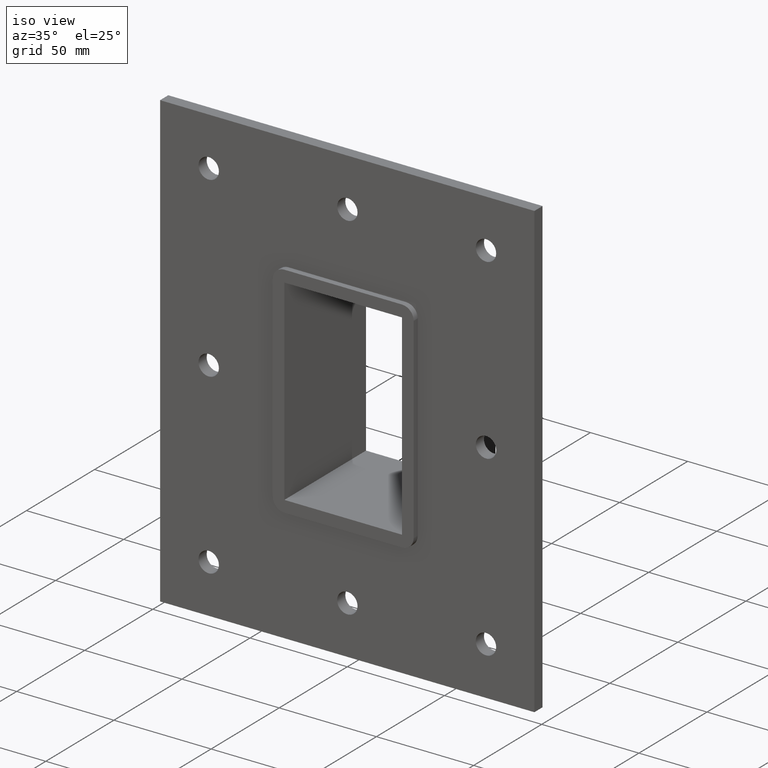
[diagram: clean part render]
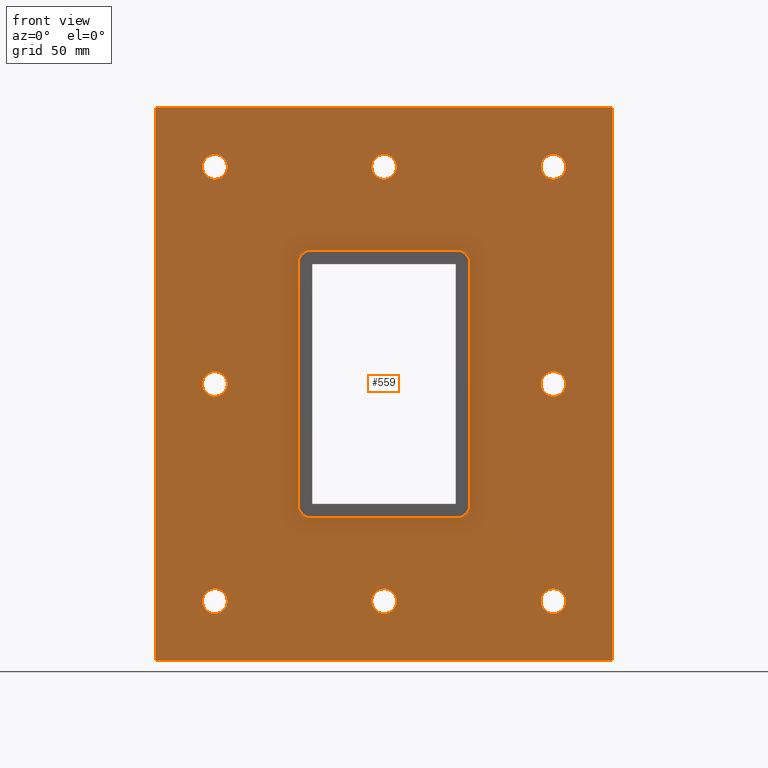
[diagram: tour spotlight — one face highlighted and labeled with its STEP entity id]
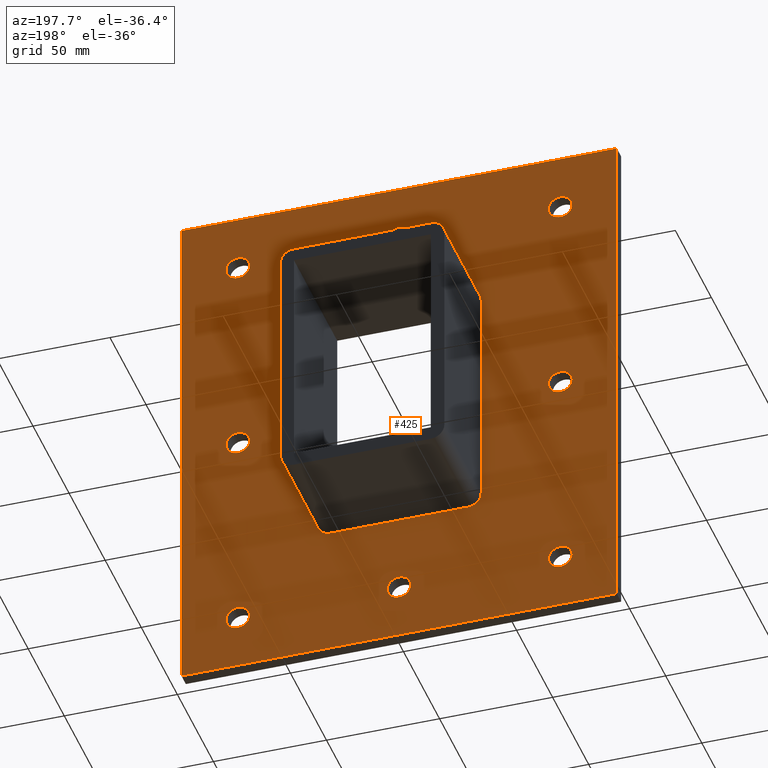
[diagram: tour spotlight — one face highlighted and labeled with its STEP entity id]
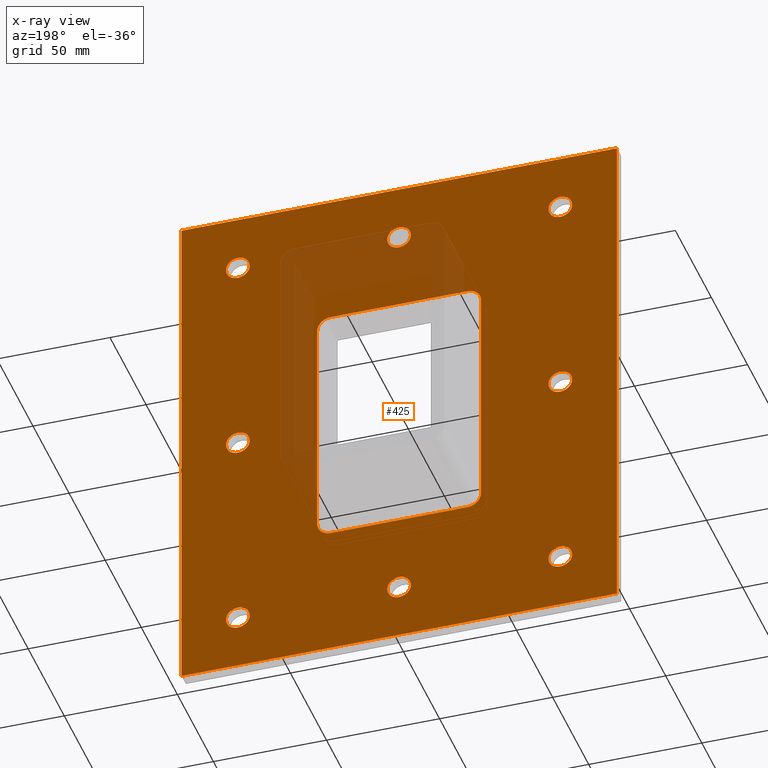
[diagram: x-ray of the same camera — body ghosted, this tour face saturated]
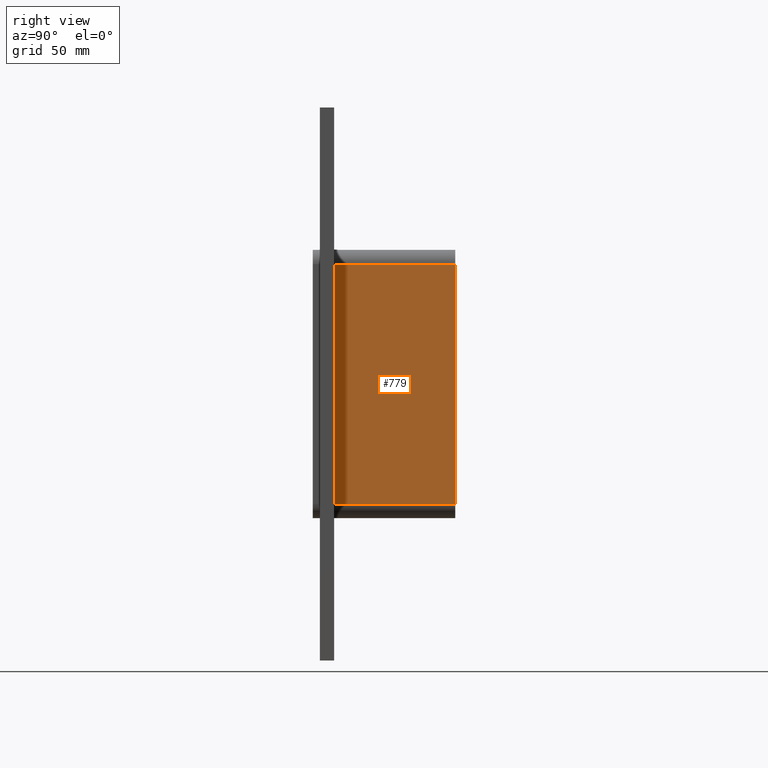
[diagram: tour spotlight — one face highlighted and labeled with its STEP entity id]
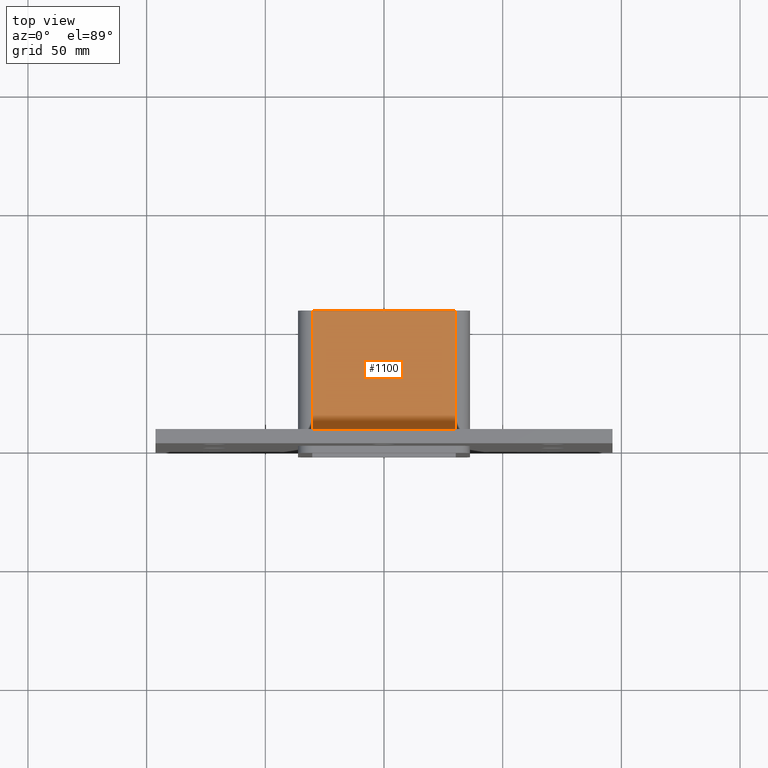
[diagram: tour spotlight — one face highlighted and labeled with its STEP entity id]
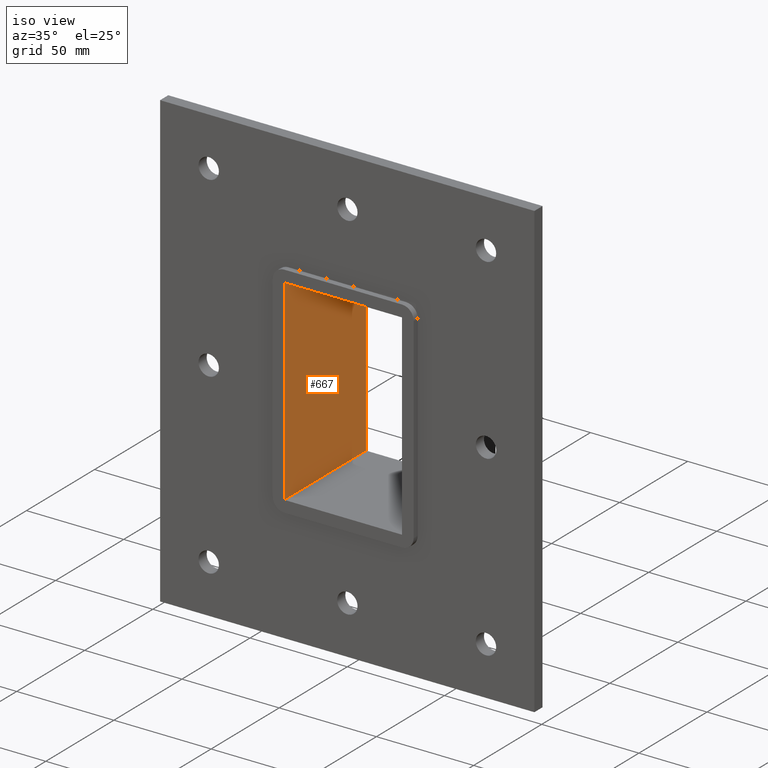
[diagram: tour spotlight — one face highlighted and labeled with its STEP entity id]
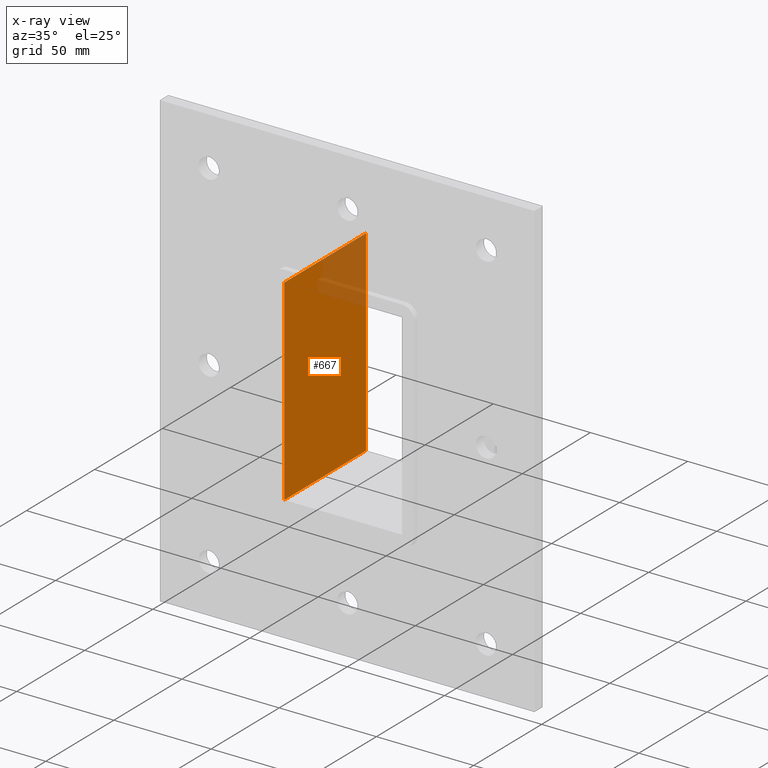
[diagram: x-ray of the same camera — body ghosted, this tour face saturated]
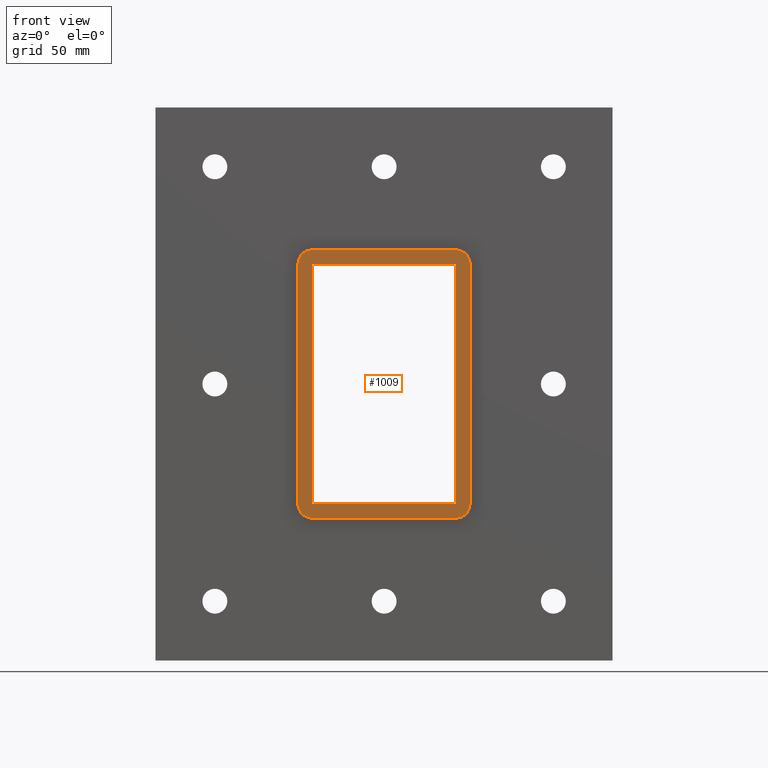
[diagram: tour spotlight — one face highlighted and labeled with its STEP entity id]
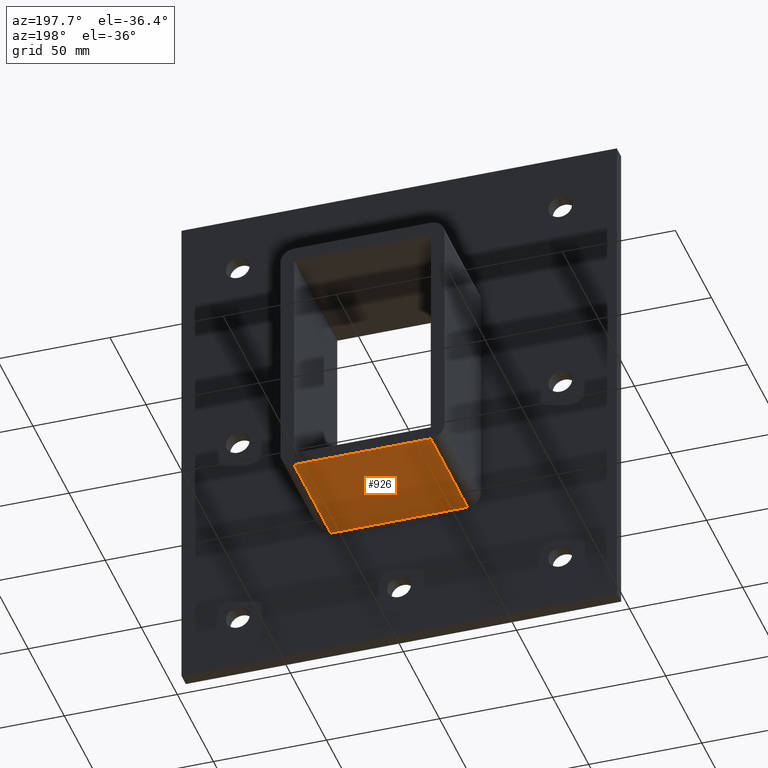
[diagram: tour spotlight — one face highlighted and labeled with its STEP entity id]
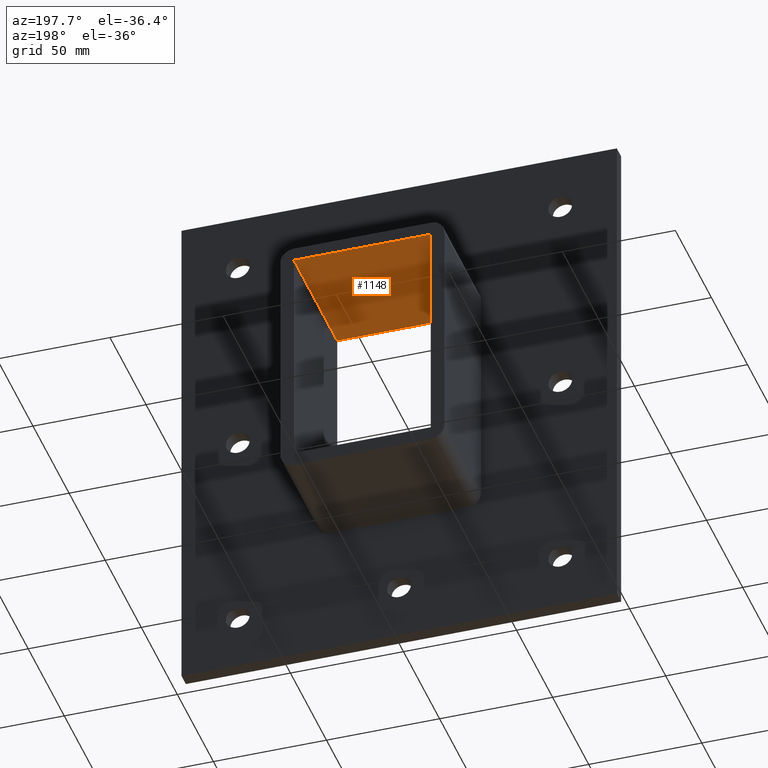
[diagram: tour spotlight — one face highlighted and labeled with its STEP entity id]
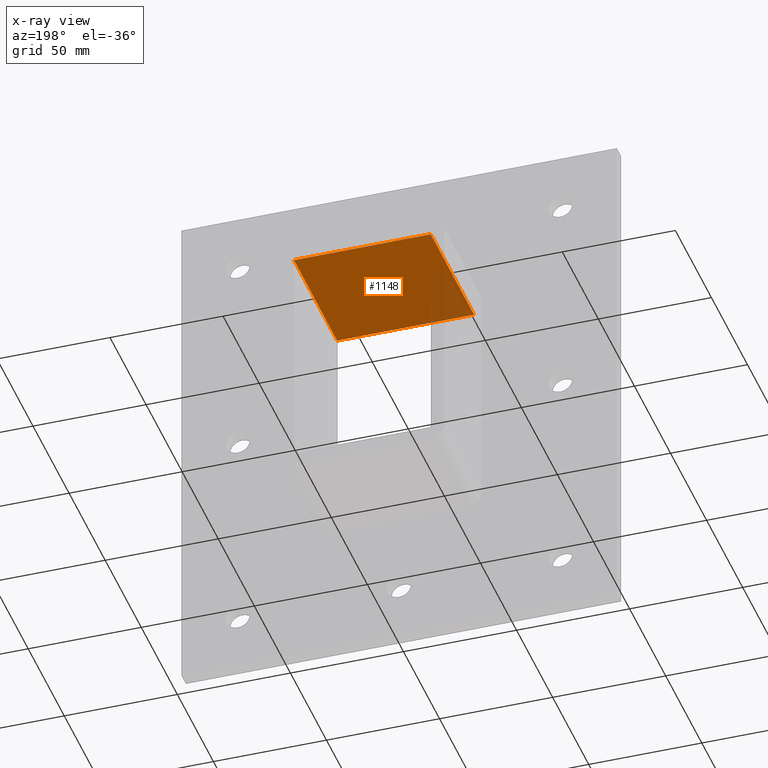
[diagram: x-ray of the same camera — body ghosted, this tour face saturated]
A machine part: a face-by-face anatomy tour. The part has 36 B-rep faces; the first image is the clean iso view, then the 8 largest visible faces are spotlighted one at a time (largest first), each with its STEP entity span.

Face 1 — front view, entity #559. In plain terms, the highlighted planar face has unit normal (0, 1, 0).
Definition (entity closure, byte-faithful):
#84=CARTESIAN_POINT('',(-66.000000000000028,0.0,-91.500000000000028));
#85=VERTEX_POINT('',#84);
#86=CARTESIAN_POINT('',(-71.250000000000028,0.0,-91.500000000000028));
#87=DIRECTION('',(0.0,1.0,0.0));
#88=DIRECTION('',(1.0,0.0,0.0));
#89=AXIS2_PLACEMENT_3D('',#86,#87,#88);
#90=CIRCLE('',#89,5.25);
#91=EDGE_CURVE('',#85,#85,#90,.T.);
#112=CARTESIAN_POINT('',(76.599999999999952,0.0,-1.776357E-014));
#113=VERTEX_POINT('',#112);
#114=CARTESIAN_POINT('',(71.349999999999952,0.0,-1.776357E-014));
#115=DIRECTION('',(0.0,1.0,0.0));
#116=DIRECTION('',(1.0,0.0,0.0));
#117=AXIS2_PLACEMENT_3D('',#114,#115,#116);
#118=CIRCLE('',#117,5.25);
#119=EDGE_CURVE('',#113,#113,#118,.T.);
#140=CARTESIAN_POINT('',(-66.000000000000028,0.0,-1.776357E-014));
#141=VERTEX_POINT('',#140);
#142=CARTESIAN_POINT('',(-71.250000000000028,0.0,-1.776357E-014));
#143=DIRECTION('',(0.0,1.0,0.0));
#144=DIRECTION('',(1.0,0.0,0.0));
#145=AXIS2_PLACEMENT_3D('',#142,#143,#144);
#146=CIRCLE('',#145,5.25);
#147=EDGE_CURVE('',#141,#141,#146,.T.);
#168=CARTESIAN_POINT('',(5.299999999999958,0.0,91.499999999999986));
#169=VERTEX_POINT('',#168);
#170=CARTESIAN_POINT('',(0.049999999999955,0.0,91.499999999999986));
#171=DIRECTION('',(0.0,1.0,0.0));
#172=DIRECTION('',(1.0,0.0,0.0));
#173=AXIS2_PLACEMENT_3D('',#170,#171,#172);
#174=CIRCLE('',#173,5.25);
#175=EDGE_CURVE('',#169,#169,#174,.T.);
#196=CARTESIAN_POINT('',(5.299999999999949,0.0,-91.500000000000028));
#197=VERTEX_POINT('',#196);
#198=CARTESIAN_POINT('',(0.049999999999946,0.0,-91.500000000000028));
#199=DIRECTION('',(0.0,1.0,0.0));
#200=DIRECTION('',(1.0,0.0,0.0));
#201=AXIS2_PLACEMENT_3D('',#198,#199,#200);
#202=CIRCLE('',#201,5.25);
#203=EDGE_CURVE('',#197,#197,#202,.T.);
#224=CARTESIAN_POINT('',(76.599999999999952,0.0,-91.500000000000028));
#225=VERTEX_POINT('',#224);
#226=CARTESIAN_POINT('',(71.349999999999937,0.0,-91.500000000000028));
#227=DIRECTION('',(0.0,1.0,0.0));
#228=DIRECTION('',(1.0,0.0,0.0));
#229=AXIS2_PLACEMENT_3D('',#226,#227,#228);
#230=CIRCLE('',#229,5.25);
#231=EDGE_CURVE('',#225,#225,#230,.T.);
#252=CARTESIAN_POINT('',(-66.000000000000028,0.0,91.499999999999986));
#253=VERTEX_POINT('',#252);
#254=CARTESIAN_POINT('',(-71.250000000000028,0.0,91.499999999999986));
#255=DIRECTION('',(0.0,1.0,0.0));
#256=DIRECTION('',(1.0,0.0,0.0));
#257=AXIS2_PLACEMENT_3D('',#254,#255,#256);
#258=CIRCLE('',#257,5.25);
#259=EDGE_CURVE('',#253,#253,#258,.T.);
#280=CARTESIAN_POINT('',(76.599999999999952,0.0,91.499999999999986));
#281=VERTEX_POINT('',#280);
#282=CARTESIAN_POINT('',(71.349999999999952,0.0,91.499999999999986));
#283=DIRECTION('',(0.0,1.0,0.0));
#284=DIRECTION('',(1.0,0.0,0.0));
#285=AXIS2_PLACEMENT_3D('',#282,#283,#284);
#286=CIRCLE('',#285,5.25);
#287=EDGE_CURVE('',#281,#281,#286,.T.);
#426=CARTESIAN_POINT('',(1.001940E-014,0.0,-5.009702E-015));
#427=DIRECTION('',(0.0,1.0,0.0));
#428=DIRECTION('',(0.0,0.0,1.0));
#429=AXIS2_PLACEMENT_3D('',#426,#427,#428);
#430=PLANE('',#429);
#431=CARTESIAN_POINT('',(-96.249999999999986,0.0,116.5));
#432=VERTEX_POINT('',#431);
#433=CARTESIAN_POINT('',(96.25,0.0,116.5));
#434=VERTEX_POINT('',#433);
#435=CARTESIAN_POINT('',(-96.249999999999986,0.0,116.5));
#436=DIRECTION('',(1.0,0.0,0.0));
#437=VECTOR('',#436,192.5);
#438=LINE('',#435,#437);
#439=EDGE_CURVE('',#432,#434,#438,.T.);
#440=ORIENTED_EDGE('',*,*,#439,.F.);
#441=CARTESIAN_POINT('',(-96.249999999999986,0.0,-116.50000000000003));
#442=VERTEX_POINT('',#441);
#443=CARTESIAN_POINT('',(-96.249999999999986,0.0,-116.50000000000003));
#444=DIRECTION('',(0.0,0.0,1.0));
#445=VECTOR('',#444,233.00000000000006);
#446=LINE('',#443,#445);
#447=EDGE_CURVE('',#442,#432,#446,.T.);
#448=ORIENTED_EDGE('',*,*,#447,.F.);
#449=CARTESIAN_POINT('',(96.25,0.0,-116.50000000000003));
#450=VERTEX_POINT('',#449);
#451=CARTESIAN_POINT('',(96.25,0.0,-116.50000000000003));
#452=DIRECTION('',(-1.0,0.0,0.0));
#453=VECTOR('',#452,192.5);
#454=LINE('',#451,#453);
#455=EDGE_CURVE('',#450,#442,#454,.T.);
#456=ORIENTED_EDGE('',*,*,#455,.F.);
#457=CARTESIAN_POINT('',(96.25,0.0,116.5));
#458=DIRECTION('',(0.0,0.0,-1.0));
#459=VECTOR('',#458,233.00000000000006);
#460=LINE('',#457,#459);
#461=EDGE_CURVE('',#434,#450,#460,.T.);
#462=ORIENTED_EDGE('',*,*,#461,.F.);
#463=EDGE_LOOP('',(#440,#448,#456,#462));
#464=FACE_OUTER_BOUND('',#463,.T.);
#465=ORIENTED_EDGE('',*,*,#91,.T.);
#466=EDGE_LOOP('',(#465));
#467=FACE_BOUND('',#466,.T.);
#468=ORIENTED_EDGE('',*,*,#119,.T.);
#469=EDGE_LOOP('',(#468));
#470=FACE_BOUND('',#469,.T.);
#471=ORIENTED_EDGE('',*,*,#147,.T.);
#472=EDGE_LOOP('',(#471));
#473=FACE_BOUND('',#472,.T.);
#474=ORIENTED_EDGE('',*,*,#175,.T.);
#475=EDGE_LOOP('',(#474));
#476=FACE_BOUND('',#475,.T.);
#477=ORIENTED_EDGE('',*,*,#203,.T.);
#478=EDGE_LOOP('',(#477));
#479=FACE_BOUND('',#478,.T.);
#480=ORIENTED_EDGE('',*,*,#231,.T.);
#481=EDGE_LOOP('',(#480));
#482=FACE_BOUND('',#481,.T.);
#483=ORIENTED_EDGE('',*,*,#259,.T.);
#484=EDGE_LOOP('',(#483));
#485=FACE_BOUND('',#484,.T.);
#486=ORIENTED_EDGE('',*,*,#287,.T.);
#487=EDGE_LOOP('',(#486));
#488=FACE_BOUND('',#487,.T.);
#489=CARTESIAN_POINT('',(-36.250000000000007,0.0,-50.500000000000007));
#490=VERTEX_POINT('',#489);
#491=CARTESIAN_POINT('',(-30.250000000000004,0.0,-56.5));
#492=VERTEX_POINT('',#491);
#493=CARTESIAN_POINT('',(-30.250000000000004,0.0,-50.500000000000007));
#494=DIRECTION('',(0.0,-1.0,0.0));
#495=DIRECTION('',(-0.707106781186547,0.0,-0.707106781186547));
#496=AXIS2_PLACEMENT_3D('',#493,#494,#495);
#497=CIRCLE('',#496,6.0);
#498=EDGE_CURVE('',#490,#492,#497,.T.);
#499=ORIENTED_EDGE('',*,*,#498,.F.);
#500=CARTESIAN_POINT('',(-36.250000000000007,0.0,50.500000000000007));
#501=VERTEX_POINT('',#500);
#502=CARTESIAN_POINT('',(-36.250000000000007,0.0,50.500000000000007));
#503=DIRECTION('',(0.0,0.0,-1.0));
#504=VECTOR('',#503,101.00000000000001);
#505=LINE('',#502,#504);
#506=EDGE_CURVE('',#501,#490,#505,.T.);
#507=ORIENTED_EDGE('',*,*,#506,.F.);
#508=CARTESIAN_POINT('',(-30.250000000000004,0.0,56.5));
#509=VERTEX_POINT('',#508);
#510=CARTESIAN_POINT('',(-30.250000000000004,0.0,50.500000000000007));
#511=DIRECTION('',(0.0,-1.0,0.0));
#512=DIRECTION('',(-0.707106781186547,0.0,0.707106781186547));
#513=AXIS2_PLACEMENT_3D('',#510,#511,#512);
#514=CIRCLE('',#513,6.0);
#515=EDGE_CURVE('',#509,#501,#514,.T.);
#516=ORIENTED_EDGE('',*,*,#515,.F.);
#517=CARTESIAN_POINT('',(30.250000000000004,0.0,56.5));
#518=VERTEX_POINT('',#517);
#519=CARTESIAN_POINT('',(30.250000000000004,0.0,56.5));
#520=DIRECTION('',(-1.0,0.0,0.0));
#521=VECTOR('',#520,60.5);
#522=LINE('',#519,#521);
#523=EDGE_CURVE('',#518,#509,#522,.T.);
#524=ORIENTED_EDGE('',*,*,#523,.F.);
#525=CARTESIAN_POINT('',(36.250000000000007,0.0,50.500000000000007));
#526=VERTEX_POINT('',#525);
#527=CARTESIAN_POINT('',(30.250000000000004,0.0,50.500000000000007));
#528=DIRECTION('',(0.0,-1.0,0.0));
#529=DIRECTION('',(0.707106781186547,0.0,0.707106781186547));
#530=AXIS2_PLACEMENT_3D('',#527,#528,#529);
#531=CIRCLE('',#530,6.0);
#532=EDGE_CURVE('',#526,#518,#531,.T.);
#533=ORIENTED_EDGE('',*,*,#532,.F.);
#534=CARTESIAN_POINT('',(36.250000000000007,0.0,-50.500000000000007));
#535=VERTEX_POINT('',#534);
#536=CARTESIAN_POINT('',(36.250000000000007,0.0,-50.5));
#537=DIRECTION('',(0.0,0.0,1.0));
#538=VECTOR('',#537,101.0);
#539=LINE('',#536,#538);
#540=EDGE_CURVE('',#535,#526,#539,.T.);
#541=ORIENTED_EDGE('',*,*,#540,.F.);
#542=CARTESIAN_POINT('',(30.250000000000004,0.0,-56.5));
#543=VERTEX_POINT('',#542);
#544=CARTESIAN_POINT('',(30.250000000000004,0.0,-50.500000000000007));
#545=DIRECTION('',(0.0,-1.0,0.0));
#546=DIRECTION('',(0.707106781186547,0.0,-0.707106781186547));
#547=AXIS2_PLACEMENT_3D('',#544,#545,#546);
#548=CIRCLE('',#547,6.0);
#549=EDGE_CURVE('',#543,#535,#548,.T.);
#550=ORIENTED_EDGE('',*,*,#549,.F.);
#551=CARTESIAN_POINT('',(-30.250000000000007,0.0,-56.5));
#552=DIRECTION('',(1.0,0.0,0.0));
#553=VECTOR('',#552,60.500000000000014);
#554=LINE('',#551,#553);
#555=EDGE_CURVE('',#492,#543,#554,.T.);
#556=ORIENTED_EDGE('',*,*,#555,.F.);
#557=EDGE_LOOP('',(#499,#507,#516,#524,#533,#541,#550,#556));
#558=FACE_BOUND('',#557,.T.);
#559=ADVANCED_FACE('',(#464,#467,#470,#473,#476,#479,#482,#485,#488,#558),#430,.F.);

Face 2 — auxiliary view, entity #425. An x-ray twin of the same camera follows (body ghosted, this face saturated) — the face is partly hidden behind the body. In plain terms, the highlighted planar face has unit normal (0, 1, 0).
Definition (entity closure, byte-faithful):
#73=CARTESIAN_POINT('',(-76.500000000000043,6.000000000000014,-91.500000000000028));
#74=VERTEX_POINT('',#73);
#75=CARTESIAN_POINT('',(-71.250000000000028,6.000000000000014,-91.500000000000028));
#76=DIRECTION('',(0.0,-1.0,0.0));
#77=DIRECTION('',(1.0,0.0,0.0));
#78=AXIS2_PLACEMENT_3D('',#75,#76,#77);
#79=CIRCLE('',#78,5.25);
#80=EDGE_CURVE('',#74,#74,#79,.T.);
#101=CARTESIAN_POINT('',(66.099999999999952,6.000000000000014,-1.776357E-014));
#102=VERTEX_POINT('',#101);
#103=CARTESIAN_POINT('',(71.349999999999952,6.000000000000014,-1.776357E-014));
#104=DIRECTION('',(0.0,-1.0,0.0));
#105=DIRECTION('',(1.0,0.0,0.0));
#106=AXIS2_PLACEMENT_3D('',#103,#104,#105);
#107=CIRCLE('',#106,5.25);
#108=EDGE_CURVE('',#102,#102,#107,.T.);
#129=CARTESIAN_POINT('',(-76.500000000000043,6.000000000000014,-1.776357E-014));
#130=VERTEX_POINT('',#129);
#131=CARTESIAN_POINT('',(-71.250000000000028,6.000000000000014,-1.776357E-014));
#132=DIRECTION('',(0.0,-1.0,0.0));
#133=DIRECTION('',(1.0,0.0,0.0));
#134=AXIS2_PLACEMENT_3D('',#131,#132,#133);
#135=CIRCLE('',#134,5.25);
#136=EDGE_CURVE('',#130,#130,#135,.T.);
#157=CARTESIAN_POINT('',(-5.200000000000049,6.000000000000014,91.499999999999986));
#158=VERTEX_POINT('',#157);
#159=CARTESIAN_POINT('',(0.049999999999955,6.000000000000014,91.499999999999986));
#160=DIRECTION('',(0.0,-1.0,0.0));
#161=DIRECTION('',(1.0,0.0,0.0));
#162=AXIS2_PLACEMENT_3D('',#159,#160,#161);
#163=CIRCLE('',#162,5.25);
#164=EDGE_CURVE('',#158,#158,#163,.T.);
#185=CARTESIAN_POINT('',(-5.200000000000058,6.000000000000014,-91.500000000000028));
#186=VERTEX_POINT('',#185);
#187=CARTESIAN_POINT('',(0.049999999999946,6.000000000000014,-91.500000000000028));
#188=DIRECTION('',(0.0,-1.0,0.0));
#189=DIRECTION('',(1.0,0.0,0.0));
#190=AXIS2_PLACEMENT_3D('',#187,#188,#189);
#191=CIRCLE('',#190,5.25);
#192=EDGE_CURVE('',#186,#186,#191,.T.);
#213=CARTESIAN_POINT('',(66.099999999999937,6.000000000000014,-91.500000000000028));
#214=VERTEX_POINT('',#213);
#215=CARTESIAN_POINT('',(71.349999999999937,6.000000000000014,-91.500000000000028));
#216=DIRECTION('',(0.0,-1.0,0.0));
#217=DIRECTION('',(1.0,0.0,0.0));
#218=AXIS2_PLACEMENT_3D('',#215,#216,#217);
#219=CIRCLE('',#218,5.25);
#220=EDGE_CURVE('',#214,#214,#219,.T.);
#241=CARTESIAN_POINT('',(-76.500000000000043,6.000000000000014,91.499999999999986));
#242=VERTEX_POINT('',#241);
#243=CARTESIAN_POINT('',(-71.250000000000028,6.000000000000014,91.499999999999986));
#244=DIRECTION('',(0.0,-1.0,0.0));
#245=DIRECTION('',(1.0,0.0,0.0));
#246=AXIS2_PLACEMENT_3D('',#243,#244,#245);
#247=CIRCLE('',#246,5.25);
#248=EDGE_CURVE('',#242,#242,#247,.T.);
#269=CARTESIAN_POINT('',(66.099999999999952,6.000000000000014,91.499999999999986));
#270=VERTEX_POINT('',#269);
#271=CARTESIAN_POINT('',(71.349999999999952,6.000000000000014,91.499999999999986));
#272=DIRECTION('',(0.0,-1.0,0.0));
#273=DIRECTION('',(1.0,0.0,0.0));
#274=AXIS2_PLACEMENT_3D('',#271,#272,#273);
#275=CIRCLE('',#274,5.25);
#276=EDGE_CURVE('',#270,#270,#275,.T.);
#292=CARTESIAN_POINT('',(1.001940E-014,6.000000000000001,-5.009702E-015));
#293=DIRECTION('',(0.0,1.0,0.0));
#294=DIRECTION('',(0.0,0.0,1.0));
#295=AXIS2_PLACEMENT_3D('',#292,#293,#294);
#296=PLANE('',#295);
#297=CARTESIAN_POINT('',(-96.249999999999986,6.000000000000001,116.5));
#298=VERTEX_POINT('',#297);
#299=CARTESIAN_POINT('',(96.250000000000014,6.000000000000001,116.5));
#300=VERTEX_POINT('',#299);
#301=CARTESIAN_POINT('',(-96.249999999999986,6.000000000000001,116.5));
#302=DIRECTION('',(1.0,0.0,0.0));
#303=VECTOR('',#302,192.5);
#304=LINE('',#301,#303);
#305=EDGE_CURVE('',#298,#300,#304,.T.);
#306=ORIENTED_EDGE('',*,*,#305,.T.);
#307=CARTESIAN_POINT('',(96.250000000000014,6.000000000000001,-116.50000000000004));
#308=VERTEX_POINT('',#307);
#309=CARTESIAN_POINT('',(96.25,6.000000000000001,116.5));
#310=DIRECTION('',(0.0,0.0,-1.0));
#311=VECTOR('',#310,233.00000000000006);
#312=LINE('',#309,#311);
#313=EDGE_CURVE('',#300,#308,#312,.T.);
#314=ORIENTED_EDGE('',*,*,#313,.T.);
#315=CARTESIAN_POINT('',(-96.249999999999986,6.000000000000001,-116.50000000000004));
#316=VERTEX_POINT('',#315);
#317=CARTESIAN_POINT('',(96.25,6.000000000000001,-116.50000000000003));
#318=DIRECTION('',(-1.0,0.0,0.0));
#319=VECTOR('',#318,192.5);
#320=LINE('',#317,#319);
#321=EDGE_CURVE('',#308,#316,#320,.T.);
#322=ORIENTED_EDGE('',*,*,#321,.T.);
#323=CARTESIAN_POINT('',(-96.249999999999986,6.000000000000001,-116.50000000000003));
#324=DIRECTION('',(0.0,0.0,1.0));
#325=VECTOR('',#324,233.00000000000006);
#326=LINE('',#323,#325);
#327=EDGE_CURVE('',#316,#298,#326,.T.);
#328=ORIENTED_EDGE('',*,*,#327,.T.);
#329=EDGE_LOOP('',(#306,#314,#322,#328));
#330=FACE_OUTER_BOUND('',#329,.T.);
#331=ORIENTED_EDGE('',*,*,#80,.T.);
#332=EDGE_LOOP('',(#331));
#333=FACE_BOUND('',#332,.T.);
#334=ORIENTED_EDGE('',*,*,#108,.T.);
#335=EDGE_LOOP('',(#334));
#336=FACE_BOUND('',#335,.T.);
#337=ORIENTED_EDGE('',*,*,#136,.T.);
#338=EDGE_LOOP('',(#337));
#339=FACE_BOUND('',#338,.T.);
#340=ORIENTED_EDGE('',*,*,#164,.T.);
#341=EDGE_LOOP('',(#340));
#342=FACE_BOUND('',#341,.T.);
#343=ORIENTED_EDGE('',*,*,#192,.T.);
#344=EDGE_LOOP('',(#343));
#345=FACE_BOUND('',#344,.T.);
#346=ORIENTED_EDGE('',*,*,#220,.T.);
#347=EDGE_LOOP('',(#346));
#348=FACE_BOUND('',#347,.T.);
#349=ORIENTED_EDGE('',*,*,#248,.T.);
#350=EDGE_LOOP('',(#349));
#351=FACE_BOUND('',#350,.T.);
#352=ORIENTED_EDGE('',*,*,#276,.T.);
#353=EDGE_LOOP('',(#352));
#354=FACE_BOUND('',#353,.T.);
#355=CARTESIAN_POINT('',(-30.250000000000004,6.000000000000001,-56.5));
#356=VERTEX_POINT('',#355);
#357=CARTESIAN_POINT('',(-36.250000000000007,6.000000000000001,-50.500000000000007));
#358=VERTEX_POINT('',#357);
#359=CARTESIAN_POINT('',(-30.250000000000004,6.000000000000001,-50.500000000000007));
#360=DIRECTION('',(0.0,1.0,0.0));
#361=DIRECTION('',(-0.707106781186547,0.0,-0.707106781186547));
#362=AXIS2_PLACEMENT_3D('',#359,#360,#361);
#363=CIRCLE('',#362,6.0);
#364=EDGE_CURVE('',#356,#358,#363,.T.);
#365=ORIENTED_EDGE('',*,*,#364,.F.);
#366=CARTESIAN_POINT('',(30.250000000000004,6.000000000000001,-56.5));
#367=VERTEX_POINT('',#366);
#368=CARTESIAN_POINT('',(30.250000000000004,6.000000000000001,-56.5));
#369=DIRECTION('',(-1.0,0.0,0.0));
#370=VECTOR('',#369,60.500000000000014);
#371=LINE('',#368,#370);
#372=EDGE_CURVE('',#367,#356,#371,.T.);
#373=ORIENTED_EDGE('',*,*,#372,.F.);
#374=CARTESIAN_POINT('',(36.250000000000007,6.000000000000001,-50.500000000000007));
#375=VERTEX_POINT('',#374);
#376=CARTESIAN_POINT('',(30.250000000000004,6.000000000000001,-50.500000000000007));
#377=DIRECTION('',(0.0,1.0,0.0));
#378=DIRECTION('',(0.707106781186547,0.0,-0.707106781186547));
#379=AXIS2_PLACEMENT_3D('',#376,#377,#378);
#380=CIRCLE('',#379,6.0);
#381=EDGE_CURVE('',#375,#367,#380,.T.);
#382=ORIENTED_EDGE('',*,*,#381,.F.);
#383=CARTESIAN_POINT('',(36.250000000000007,6.000000000000001,50.500000000000007));
#384=VERTEX_POINT('',#383);
#385=CARTESIAN_POINT('',(36.250000000000007,6.000000000000001,50.500000000000007));
#386=DIRECTION('',(0.0,0.0,-1.0));
#387=VECTOR('',#386,101.0);
#388=LINE('',#385,#387);
#389=EDGE_CURVE('',#384,#375,#388,.T.);
#390=ORIENTED_EDGE('',*,*,#389,.F.);
#391=CARTESIAN_POINT('',(30.250000000000004,6.000000000000001,56.5));
#392=VERTEX_POINT('',#391);
#393=CARTESIAN_POINT('',(30.250000000000004,6.000000000000001,50.500000000000007));
#394=DIRECTION('',(0.0,1.0,0.0));
#395=DIRECTION('',(0.707106781186547,0.0,0.707106781186547));
#396=AXIS2_PLACEMENT_3D('',#393,#394,#395);
#397=CIRCLE('',#396,6.0);
#398=EDGE_CURVE('',#392,#384,#397,.T.);
#399=ORIENTED_EDGE('',*,*,#398,.F.);
#400=CARTESIAN_POINT('',(-30.250000000000004,6.000000000000001,56.5));
#401=VERTEX_POINT('',#400);
#402=CARTESIAN_POINT('',(-30.25,6.000000000000001,56.5));
#403=DIRECTION('',(1.0,0.0,0.0));
#404=VECTOR('',#403,60.5);
#405=LINE('',#402,#404);
#406=EDGE_CURVE('',#401,#392,#405,.T.);
#407=ORIENTED_EDGE('',*,*,#406,.F.);
#408=CARTESIAN_POINT('',(-36.250000000000007,6.000000000000001,50.500000000000007));
#409=VERTEX_POINT('',#408);
#410=CARTESIAN_POINT('',(-30.250000000000004,6.000000000000001,50.500000000000007));
#411=DIRECTION('',(0.0,1.0,0.0));
#412=DIRECTION('',(-0.707106781186547,0.0,0.707106781186547));
#413=AXIS2_PLACEMENT_3D('',#410,#411,#412);
#414=CIRCLE('',#413,6.0);
#415=EDGE_CURVE('',#409,#401,#414,.T.);
#416=ORIENTED_EDGE('',*,*,#415,.F.);
#417=CARTESIAN_POINT('',(-36.250000000000007,6.000000000000001,-50.500000000000007));
#418=DIRECTION('',(0.0,0.0,1.0));
#419=VECTOR('',#418,101.00000000000001);
#420=LINE('',#417,#419);
#421=EDGE_CURVE('',#358,#409,#420,.T.);
#422=ORIENTED_EDGE('',*,*,#421,.F.);
#423=EDGE_LOOP('',(#365,#373,#382,#390,#399,#407,#416,#422));
#424=FACE_BOUND('',#423,.T.);
#425=ADVANCED_FACE('',(#330,#333,#336,#339,#342,#345,#348,#351,#354,#424),#296,.T.);

Face 3 — right view, entity #779. In plain terms, the highlighted planar face has unit normal (1, 0, 0).
Definition (entity closure, byte-faithful):
#374=CARTESIAN_POINT('',(36.250000000000007,6.000000000000001,-50.500000000000007));
#375=VERTEX_POINT('',#374);
#383=CARTESIAN_POINT('',(36.250000000000007,6.000000000000001,50.500000000000007));
#384=VERTEX_POINT('',#383);
#385=CARTESIAN_POINT('',(36.250000000000007,6.000000000000001,50.500000000000007));
#386=DIRECTION('',(0.0,0.0,-1.0));
#387=VECTOR('',#386,101.0);
#388=LINE('',#385,#387);
#389=EDGE_CURVE('',#384,#375,#388,.T.);
#706=CARTESIAN_POINT('',(36.250000000000007,57.0,50.500000000000007));
#707=VERTEX_POINT('',#706);
#708=CARTESIAN_POINT('',(36.250000000000007,6.000000000000001,50.500000000000007));
#709=DIRECTION('',(0.0,1.0,0.0));
#710=VECTOR('',#709,51.0);
#711=LINE('',#708,#710);
#712=EDGE_CURVE('',#384,#707,#711,.T.);
#756=CARTESIAN_POINT('',(36.250000000000007,0.0,56.5));
#757=DIRECTION('',(1.0,0.0,0.0));
#758=DIRECTION('',(0.0,0.0,-1.0));
#759=AXIS2_PLACEMENT_3D('',#756,#757,#758);
#760=PLANE('',#759);
#761=ORIENTED_EDGE('',*,*,#389,.T.);
#762=CARTESIAN_POINT('',(36.250000000000007,57.0,-50.500000000000007));
#763=VERTEX_POINT('',#762);
#764=CARTESIAN_POINT('',(36.250000000000007,57.0,-50.500000000000007));
#765=DIRECTION('',(0.0,-1.0,0.0));
#766=VECTOR('',#765,51.0);
#767=LINE('',#764,#766);
#768=EDGE_CURVE('',#763,#375,#767,.T.);
#769=ORIENTED_EDGE('',*,*,#768,.F.);
#770=CARTESIAN_POINT('',(36.250000000000007,57.0,50.5));
#771=DIRECTION('',(0.0,0.0,-1.0));
#772=VECTOR('',#771,101.00000000000001);
#773=LINE('',#770,#772);
#774=EDGE_CURVE('',#707,#763,#773,.T.);
#775=ORIENTED_EDGE('',*,*,#774,.F.);
#776=ORIENTED_EDGE('',*,*,#712,.F.);
#777=EDGE_LOOP('',(#761,#769,#775,#776));
#778=FACE_OUTER_BOUND('',#777,.T.);
#779=ADVANCED_FACE('',(#778),#760,.T.);

Face 4 — top view, entity #1100. In plain terms, the highlighted planar face has unit normal (0, 0, 1).
Definition (entity closure, byte-faithful):
#391=CARTESIAN_POINT('',(30.250000000000004,6.000000000000001,56.5));
#392=VERTEX_POINT('',#391);
#400=CARTESIAN_POINT('',(-30.250000000000004,6.000000000000001,56.5));
#401=VERTEX_POINT('',#400);
#402=CARTESIAN_POINT('',(-30.25,6.000000000000001,56.5));
#403=DIRECTION('',(1.0,0.0,0.0));
#404=VECTOR('',#403,60.5);
#405=LINE('',#402,#404);
#406=EDGE_CURVE('',#401,#392,#405,.T.);
#714=CARTESIAN_POINT('',(30.25,57.0,56.5));
#715=VERTEX_POINT('',#714);
#723=CARTESIAN_POINT('',(30.250000000000004,57.0,56.5));
#724=DIRECTION('',(0.0,-1.0,0.0));
#725=VECTOR('',#724,51.0);
#726=LINE('',#723,#725);
#727=EDGE_CURVE('',#715,#392,#726,.T.);
#1065=CARTESIAN_POINT('',(-30.250000000000004,57.0,56.5));
#1066=VERTEX_POINT('',#1065);
#1067=CARTESIAN_POINT('',(-30.250000000000004,6.000000000000001,56.5));
#1068=DIRECTION('',(0.0,1.0,0.0));
#1069=VECTOR('',#1068,51.0);
#1070=LINE('',#1067,#1069);
#1071=EDGE_CURVE('',#401,#1066,#1070,.T.);
#1084=CARTESIAN_POINT('',(-36.250000000000007,0.0,56.5));
#1085=DIRECTION('',(0.0,0.0,1.0));
#1086=DIRECTION('',(1.0,0.0,0.0));
#1087=AXIS2_PLACEMENT_3D('',#1084,#1085,#1086);
#1088=PLANE('',#1087);
#1089=ORIENTED_EDGE('',*,*,#406,.T.);
#1090=ORIENTED_EDGE('',*,*,#727,.F.);
#1091=CARTESIAN_POINT('',(-30.250000000000007,57.0,56.5));
#1092=DIRECTION('',(1.0,0.0,0.0));
#1093=VECTOR('',#1092,60.5);
#1094=LINE('',#1091,#1093);
#1095=EDGE_CURVE('',#1066,#715,#1094,.T.);
#1096=ORIENTED_EDGE('',*,*,#1095,.F.);
#1097=ORIENTED_EDGE('',*,*,#1071,.F.);
#1098=EDGE_LOOP('',(#1089,#1090,#1096,#1097));
#1099=FACE_OUTER_BOUND('',#1098,.T.);
#1100=ADVANCED_FACE('',(#1099),#1088,.T.);

Face 5 — iso view, entity #667. An x-ray twin of the same camera follows (body ghosted, this face saturated) — the face is partly hidden behind the body. In plain terms, the highlighted planar face has unit normal (-1, 0, 0).
Definition (entity closure, byte-faithful):
#628=CARTESIAN_POINT('',(-30.250000000000004,0.0,-50.499999999999986));
#629=DIRECTION('',(-1.0,0.0,0.0));
#630=DIRECTION('',(0.0,0.0,1.0));
#631=AXIS2_PLACEMENT_3D('',#628,#629,#630);
#632=PLANE('',#631);
#633=CARTESIAN_POINT('',(-30.250000000000004,-3.0,-50.499999999999986));
#634=VERTEX_POINT('',#633);
#635=CARTESIAN_POINT('',(-30.250000000000004,57.0,-50.499999999999986));
#636=VERTEX_POINT('',#635);
#637=CARTESIAN_POINT('',(-30.250000000000004,-3.0,-50.499999999999986));
#638=DIRECTION('',(0.0,1.0,0.0));
#639=VECTOR('',#638,60.0);
#640=LINE('',#637,#639);
#641=EDGE_CURVE('',#634,#636,#640,.T.);
#642=ORIENTED_EDGE('',*,*,#641,.T.);
#643=CARTESIAN_POINT('',(-30.250000000000004,57.0,50.500000000000007));
#644=VERTEX_POINT('',#643);
#645=CARTESIAN_POINT('',(-30.250000000000004,57.0,50.500000000000007));
#646=DIRECTION('',(0.0,0.0,-1.0));
#647=VECTOR('',#646,101.0);
#648=LINE('',#645,#647);
#649=EDGE_CURVE('',#644,#636,#648,.T.);
#650=ORIENTED_EDGE('',*,*,#649,.F.);
#651=CARTESIAN_POINT('',(-30.250000000000004,-3.0,50.500000000000007));
#652=VERTEX_POINT('',#651);
#653=CARTESIAN_POINT('',(-30.250000000000004,-3.0,50.500000000000007));
#654=DIRECTION('',(0.0,1.0,0.0));
#655=VECTOR('',#654,60.0);
#656=LINE('',#653,#655);
#657=EDGE_CURVE('',#652,#644,#656,.T.);
#658=ORIENTED_EDGE('',*,*,#657,.F.);
#659=CARTESIAN_POINT('',(-30.250000000000004,-3.0,-50.499999999999986));
#660=DIRECTION('',(0.0,0.0,1.0));
#661=VECTOR('',#660,101.0);
#662=LINE('',#659,#661);
#663=EDGE_CURVE('',#634,#652,#662,.T.);
#664=ORIENTED_EDGE('',*,*,#663,.F.);
#665=EDGE_LOOP('',(#642,#650,#658,#664));
#666=FACE_OUTER_BOUND('',#665,.T.);
#667=ADVANCED_FACE('',(#666),#632,.F.);

Face 6 — front view, entity #1009. In plain terms, the highlighted planar face has unit normal (0, 1, 0).
Definition (entity closure, byte-faithful):
#633=CARTESIAN_POINT('',(-30.250000000000004,-3.0,-50.499999999999986));
#634=VERTEX_POINT('',#633);
#651=CARTESIAN_POINT('',(-30.250000000000004,-3.0,50.500000000000007));
#652=VERTEX_POINT('',#651);
#659=CARTESIAN_POINT('',(-30.250000000000004,-3.0,-50.499999999999986));
#660=DIRECTION('',(0.0,0.0,1.0));
#661=VECTOR('',#660,101.0);
#662=LINE('',#659,#661);
#663=EDGE_CURVE('',#634,#652,#662,.T.);
#674=CARTESIAN_POINT('',(30.25,-3.0,56.5));
#675=VERTEX_POINT('',#674);
#682=CARTESIAN_POINT('',(36.250000000000007,-3.0,50.500000000000007));
#683=VERTEX_POINT('',#682);
#684=CARTESIAN_POINT('',(30.250000000000004,-3.0,50.500000000000007));
#685=DIRECTION('',(0.0,1.0,0.0));
#686=DIRECTION('',(0.707106781186547,0.0,0.707106781186547));
#687=AXIS2_PLACEMENT_3D('',#684,#685,#686);
#688=CIRCLE('',#687,6.0);
#689=EDGE_CURVE('',#675,#683,#688,.T.);
#739=CARTESIAN_POINT('',(36.250000000000007,-3.0,-50.500000000000007));
#740=VERTEX_POINT('',#739);
#741=CARTESIAN_POINT('',(36.250000000000007,-3.0,-50.500000000000014));
#742=DIRECTION('',(0.0,0.0,1.0));
#743=VECTOR('',#742,101.00000000000001);
#744=LINE('',#741,#743);
#745=EDGE_CURVE('',#740,#683,#744,.T.);
#786=CARTESIAN_POINT('',(-30.250000000000004,-3.0,56.5));
#787=VERTEX_POINT('',#786);
#794=CARTESIAN_POINT('',(30.249999999999993,-3.0,56.5));
#795=DIRECTION('',(-1.0,0.0,0.0));
#796=VECTOR('',#795,60.5);
#797=LINE('',#794,#796);
#798=EDGE_CURVE('',#675,#787,#797,.T.);
#811=CARTESIAN_POINT('',(30.250000000000004,-3.0,-56.5));
#812=VERTEX_POINT('',#811);
#813=CARTESIAN_POINT('',(30.250000000000004,-3.0,-50.500000000000007));
#814=DIRECTION('',(0.0,1.0,0.0));
#815=DIRECTION('',(0.707106781186547,0.0,-0.707106781186547));
#816=AXIS2_PLACEMENT_3D('',#813,#814,#815);
#817=CIRCLE('',#816,6.0);
#818=EDGE_CURVE('',#740,#812,#817,.T.);
#860=CARTESIAN_POINT('',(-36.250000000000007,-3.0,50.500000000000007));
#861=VERTEX_POINT('',#860);
#868=CARTESIAN_POINT('',(-30.250000000000004,-3.0,50.500000000000007));
#869=DIRECTION('',(0.0,1.0,0.0));
#870=DIRECTION('',(-0.707106781186547,0.0,0.707106781186547));
#871=AXIS2_PLACEMENT_3D('',#868,#869,#870);
#872=CIRCLE('',#871,6.0);
#873=EDGE_CURVE('',#861,#787,#872,.T.);
#886=CARTESIAN_POINT('',(-30.25,-3.0,-56.5));
#887=VERTEX_POINT('',#886);
#888=CARTESIAN_POINT('',(-30.249999999999993,-3.0,-56.5));
#889=DIRECTION('',(1.0,0.0,0.0));
#890=VECTOR('',#889,60.5);
#891=LINE('',#888,#890);
#892=EDGE_CURVE('',#887,#812,#891,.T.);
#933=CARTESIAN_POINT('',(-36.250000000000007,-3.0,-50.500000000000007));
#934=VERTEX_POINT('',#933);
#941=CARTESIAN_POINT('',(-36.250000000000007,-3.0,50.500000000000014));
#942=DIRECTION('',(0.0,0.0,-1.0));
#943=VECTOR('',#942,101.00000000000001);
#944=LINE('',#941,#943);
#945=EDGE_CURVE('',#861,#934,#944,.T.);
#958=CARTESIAN_POINT('',(-30.250000000000004,-3.0,-50.500000000000007));
#959=DIRECTION('',(0.0,1.0,0.0));
#960=DIRECTION('',(-0.707106781186547,0.0,-0.707106781186547));
#961=AXIS2_PLACEMENT_3D('',#958,#959,#960);
#962=CIRCLE('',#961,6.0);
#963=EDGE_CURVE('',#887,#934,#962,.T.);
#969=CARTESIAN_POINT('',(0.0,-3.0,0.0));
#970=DIRECTION('',(0.0,1.0,0.0));
#971=DIRECTION('',(0.0,0.0,1.0));
#972=AXIS2_PLACEMENT_3D('',#969,#970,#971);
#973=PLANE('',#972);
#974=ORIENTED_EDGE('',*,*,#818,.F.);
#975=ORIENTED_EDGE('',*,*,#745,.T.);
#976=ORIENTED_EDGE('',*,*,#689,.F.);
#977=ORIENTED_EDGE('',*,*,#798,.T.);
#978=ORIENTED_EDGE('',*,*,#873,.F.);
#979=ORIENTED_EDGE('',*,*,#945,.T.);
#980=ORIENTED_EDGE('',*,*,#963,.F.);
#981=ORIENTED_EDGE('',*,*,#892,.T.);
#982=EDGE_LOOP('',(#974,#975,#976,#977,#978,#979,#980,#981));
#983=FACE_OUTER_BOUND('',#982,.T.);
#984=CARTESIAN_POINT('',(30.249999999999993,-3.0,50.500000000000007));
#985=VERTEX_POINT('',#984);
#986=CARTESIAN_POINT('',(30.249999999999993,-3.0,-50.499999999999986));
#987=VERTEX_POINT('',#986);
#988=CARTESIAN_POINT('',(30.249999999999993,-3.0,50.500000000000007));
#989=DIRECTION('',(0.0,0.0,-1.0));
#990=VECTOR('',#989,101.0);
#991=LINE('',#988,#990);
#992=EDGE_CURVE('',#985,#987,#991,.T.);
#993=ORIENTED_EDGE('',*,*,#992,.T.);
#994=CARTESIAN_POINT('',(30.249999999999993,-3.0,-50.499999999999986));
#995=DIRECTION('',(-1.0,0.0,0.0));
#996=VECTOR('',#995,60.5);
#997=LINE('',#994,#996);
#998=EDGE_CURVE('',#987,#634,#997,.T.);
#999=ORIENTED_EDGE('',*,*,#998,.T.);
#1000=ORIENTED_EDGE('',*,*,#663,.T.);
#1001=CARTESIAN_POINT('',(-30.250000000000004,-3.0,50.500000000000007));
#1002=DIRECTION('',(1.0,0.0,0.0));
#1003=VECTOR('',#1002,60.5);
#1004=LINE('',#1001,#1003);
#1005=EDGE_CURVE('',#652,#985,#1004,.T.);
#1006=ORIENTED_EDGE('',*,*,#1005,.T.);
#1007=EDGE_LOOP('',(#993,#999,#1000,#1006));
#1008=FACE_BOUND('',#1007,.T.);
#1009=ADVANCED_FACE('',(#983,#1008),#973,.F.);

Face 7 — auxiliary view, entity #926. In plain terms, the highlighted planar face has unit normal (0, 0, -1).
Definition (entity closure, byte-faithful):
#355=CARTESIAN_POINT('',(-30.250000000000004,6.000000000000001,-56.5));
#356=VERTEX_POINT('',#355);
#366=CARTESIAN_POINT('',(30.250000000000004,6.000000000000001,-56.5));
#367=VERTEX_POINT('',#366);
#368=CARTESIAN_POINT('',(30.250000000000004,6.000000000000001,-56.5));
#369=DIRECTION('',(-1.0,0.0,0.0));
#370=VECTOR('',#369,60.500000000000014);
#371=LINE('',#368,#370);
#372=EDGE_CURVE('',#367,#356,#371,.T.);
#835=CARTESIAN_POINT('',(30.250000000000004,57.0,-56.5));
#836=VERTEX_POINT('',#835);
#837=CARTESIAN_POINT('',(30.250000000000004,6.000000000000001,-56.5));
#838=DIRECTION('',(0.0,1.0,0.0));
#839=VECTOR('',#838,51.0);
#840=LINE('',#837,#839);
#841=EDGE_CURVE('',#367,#836,#840,.T.);
#903=CARTESIAN_POINT('',(36.250000000000007,0.0,-56.5));
#904=DIRECTION('',(0.0,0.0,-1.0));
#905=DIRECTION('',(-1.0,0.0,0.0));
#906=AXIS2_PLACEMENT_3D('',#903,#904,#905);
#907=PLANE('',#906);
#908=ORIENTED_EDGE('',*,*,#372,.T.);
#909=CARTESIAN_POINT('',(-30.25,57.0,-56.5));
#910=VERTEX_POINT('',#909);
#911=CARTESIAN_POINT('',(-30.250000000000004,57.0,-56.5));
#912=DIRECTION('',(0.0,-1.0,0.0));
#913=VECTOR('',#912,51.0);
#914=LINE('',#911,#913);
#915=EDGE_CURVE('',#910,#356,#914,.T.);
#916=ORIENTED_EDGE('',*,*,#915,.F.);
#917=CARTESIAN_POINT('',(30.250000000000007,57.0,-56.5));
#918=DIRECTION('',(-1.0,0.0,0.0));
#919=VECTOR('',#918,60.5);
#920=LINE('',#917,#919);
#921=EDGE_CURVE('',#836,#910,#920,.T.);
#922=ORIENTED_EDGE('',*,*,#921,.F.);
#923=ORIENTED_EDGE('',*,*,#841,.F.);
#924=EDGE_LOOP('',(#908,#916,#922,#923));
#925=FACE_OUTER_BOUND('',#924,.T.);
#926=ADVANCED_FACE('',(#925),#907,.T.);

Face 8 — auxiliary view, entity #1148. An x-ray twin of the same camera follows (body ghosted, this face saturated) — the face is partly hidden behind the body. In plain terms, the highlighted planar face has unit normal (0, 0, 1).
Definition (entity closure, byte-faithful):
#643=CARTESIAN_POINT('',(-30.250000000000004,57.0,50.500000000000007));
#644=VERTEX_POINT('',#643);
#651=CARTESIAN_POINT('',(-30.250000000000004,-3.0,50.500000000000007));
#652=VERTEX_POINT('',#651);
#653=CARTESIAN_POINT('',(-30.250000000000004,-3.0,50.500000000000007));
#654=DIRECTION('',(0.0,1.0,0.0));
#655=VECTOR('',#654,60.0);
#656=LINE('',#653,#655);
#657=EDGE_CURVE('',#652,#644,#656,.T.);
#984=CARTESIAN_POINT('',(30.249999999999993,-3.0,50.500000000000007));
#985=VERTEX_POINT('',#984);
#1001=CARTESIAN_POINT('',(-30.250000000000004,-3.0,50.500000000000007));
#1002=DIRECTION('',(1.0,0.0,0.0));
#1003=VECTOR('',#1002,60.5);
#1004=LINE('',#1001,#1003);
#1005=EDGE_CURVE('',#652,#985,#1004,.T.);
#1115=CARTESIAN_POINT('',(30.249999999999993,57.0,50.500000000000007));
#1116=VERTEX_POINT('',#1115);
#1117=CARTESIAN_POINT('',(30.249999999999993,-3.0,50.500000000000007));
#1118=DIRECTION('',(0.0,1.0,0.0));
#1119=VECTOR('',#1118,60.0);
#1120=LINE('',#1117,#1119);
#1121=EDGE_CURVE('',#985,#1116,#1120,.T.);
#1132=CARTESIAN_POINT('',(-30.250000000000004,0.0,50.500000000000007));
#1133=DIRECTION('',(0.0,0.0,1.0));
#1134=DIRECTION('',(1.0,0.0,0.0));
#1135=AXIS2_PLACEMENT_3D('',#1132,#1133,#1134);
#1136=PLANE('',#1135);
#1137=ORIENTED_EDGE('',*,*,#657,.T.);
#1138=CARTESIAN_POINT('',(30.25,57.0,50.500000000000007));
#1139=DIRECTION('',(-1.0,0.0,0.0));
#1140=VECTOR('',#1139,60.5);
#1141=LINE('',#1138,#1140);
#1142=EDGE_CURVE('',#1116,#644,#1141,.T.);
#1143=ORIENTED_EDGE('',*,*,#1142,.F.);
#1144=ORIENTED_EDGE('',*,*,#1121,.F.);
#1145=ORIENTED_EDGE('',*,*,#1005,.F.);
#1146=EDGE_LOOP('',(#1137,#1143,#1144,#1145));
#1147=FACE_OUTER_BOUND('',#1146,.T.);
#1148=ADVANCED_FACE('',(#1147),#1136,.F.);